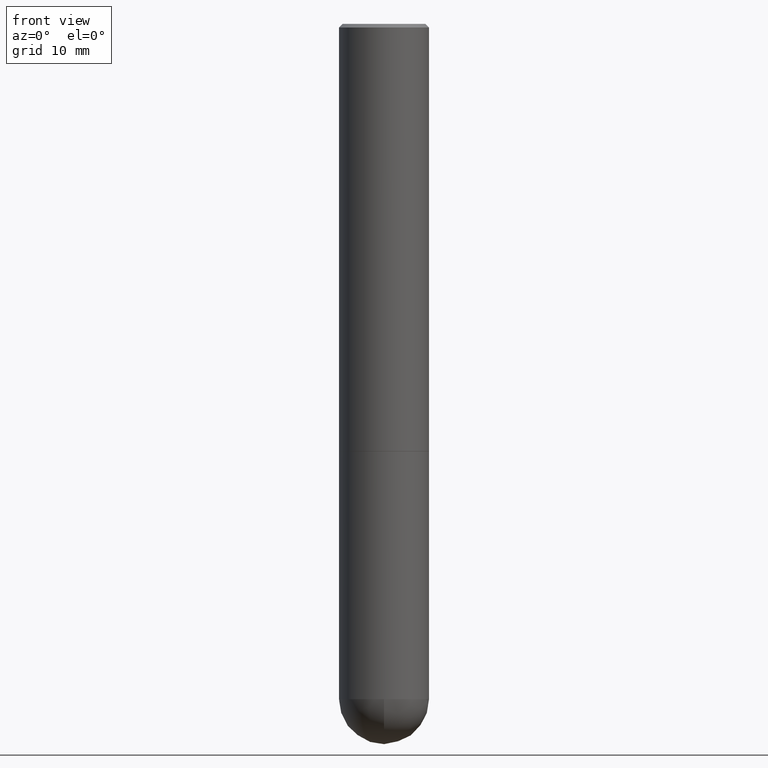
[diagram: clean part render]
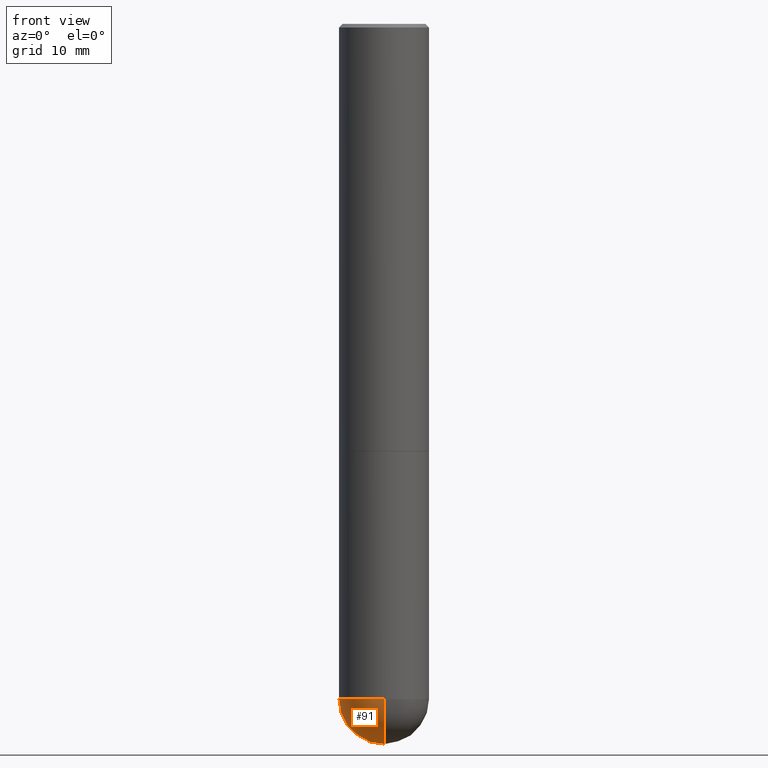
[diagram: same view with one face highlighted and labeled with its STEP entity id]
A machine part, front view. The second image highlights one B-rep face of the part: STEP entity #91.
In plain terms, the highlighted spherical surface has radius 6.35 mm.
Its self-contained STEP definition (entity closure, byte-faithful):
#4 = DIRECTION ( 'NONE',  ( -2.445468806185136597E-29, 3.491481338843145583E-15, 1.000000000000000000 ) ) ;
#24 = CARTESIAN_POINT ( 'NONE',  ( -0.2500000000000000000, -8.916304760806885668E-15, -3.750000000000000000 ) ) ;
#28 = DIRECTION ( 'NONE',  ( -2.445468806185136597E-29, 3.491481338843145583E-15, 1.000000000000000000 ) ) ;
#31 = EDGE_CURVE ( 'NONE', #169, #326, #262, .T. ) ;
#42 = CIRCLE ( 'NONE', #387, 0.2500000000000000000 ) ;
#69 = ORIENTED_EDGE ( 'NONE', *, *, #289, .F. ) ;
#73 = ORIENTED_EDGE ( 'NONE', *, *, #200, .F. ) ;
#91 = ADVANCED_FACE ( 'NONE', ( #203 ), #259, .T. ) ;
#96 = AXIS2_PLACEMENT_3D ( 'NONE', #296, #396, #144 ) ;
#104 = VERTEX_POINT ( 'NONE', #24 ) ;
#107 = EDGE_LOOP ( 'NONE', ( #190, #134, #69, #73 ) ) ;
#134 = ORIENTED_EDGE ( 'NONE', *, *, #31, .T. ) ;
#144 = DIRECTION ( 'NONE',  ( -7.105427357601001859E-15, -1.000000000000000000, 0.000000000000000000 ) ) ;
#153 = CARTESIAN_POINT ( 'NONE',  ( 9.170508023194262238E-29, -1.309305502066179741E-14, -3.750000000000000000 ) ) ;
#162 = CIRCLE ( 'NONE', #210, 0.2500000000000001110 ) ;
#169 = VERTEX_POINT ( 'NONE', #235 ) ;
#175 = CARTESIAN_POINT ( 'NONE',  ( 8.839388245280375991E-29, -1.356723738880184771E-14, -3.750000000000000000 ) ) ;
#178 = AXIS2_PLACEMENT_3D ( 'NONE', #153, #4, #409 ) ;
#190 = ORIENTED_EDGE ( 'NONE', *, *, #275, .F. ) ;
#199 = VERTEX_POINT ( 'NONE', #244 ) ;
#200 = EDGE_CURVE ( 'NONE', #199, #104, #343, .T. ) ;
#203 = FACE_OUTER_BOUND ( 'NONE', #107, .T. ) ;
#204 = DIRECTION ( 'NONE',  ( 6.982962677686265922E-15, 1.000000000000000000, -4.370956789862818783E-15 ) ) ;
#207 = CARTESIAN_POINT ( 'NONE',  ( 9.170508023194262238E-29, -1.309305502066179741E-14, -3.750000000000000000 ) ) ;
#210 = AXIS2_PLACEMENT_3D ( 'NONE', #312, #238, #240 ) ;
#235 = CARTESIAN_POINT ( 'NONE',  ( 9.461445025441403338E-29, -1.442479963852329389E-14, -4.000000000000000888 ) ) ;
#237 = CARTESIAN_POINT ( 'NONE',  ( -1.776356839400160732E-15, -0.2500000000000133782, -3.749999999999999112 ) ) ;
#238 = DIRECTION ( 'NONE',  ( 1.000000000000000000, -6.982962677686265922E-15, 4.883557194083112340E-29 ) ) ;
#240 = DIRECTION ( 'NONE',  ( 6.982962677686266711E-15, 1.000000000000000000, 0.000000000000000000 ) ) ;
#244 = CARTESIAN_POINT ( 'NONE',  ( 1.745740669421657002E-15, 0.2499999999999867606, -3.750000000000001332 ) ) ;
#259 = SPHERICAL_SURFACE ( 'NONE', #307, 0.2500000000000001110 ) ;
#262 = CIRCLE ( 'NONE', #96, 0.2500000000000001110 ) ;
#275 = EDGE_CURVE ( 'NONE', #169, #199, #162, .T. ) ;
#289 = EDGE_CURVE ( 'NONE', #104, #326, #42, .T. ) ;
#296 = CARTESIAN_POINT ( 'NONE',  ( 8.839388245280375991E-29, -1.356723738880184771E-14, -3.750000000000000000 ) ) ;
#302 = DIRECTION ( 'NONE',  ( -1.000000000000000000, 6.982962677686265922E-15, -4.883557194083113462E-29 ) ) ;
#307 = AXIS2_PLACEMENT_3D ( 'NONE', #175, #302, #204 ) ;
#312 = CARTESIAN_POINT ( 'NONE',  ( 8.839388245280375991E-29, -1.356723738880184771E-14, -3.750000000000000000 ) ) ;
#326 = VERTEX_POINT ( 'NONE', #237 ) ;
#343 = CIRCLE ( 'NONE', #178, 0.2500000000000000000 ) ;
#383 = DIRECTION ( 'NONE',  ( 1.000000000000000000, -6.982962677686262766E-15, 0.000000000000000000 ) ) ;
#387 = AXIS2_PLACEMENT_3D ( 'NONE', #207, #28, #383 ) ;
#396 = DIRECTION ( 'NONE',  ( -1.000000000000000000, 7.105427357601001070E-15, -4.926315508542082329E-29 ) ) ;
#409 = DIRECTION ( 'NONE',  ( 1.000000000000000000, -6.982962677686262766E-15, 0.000000000000000000 ) ) ;